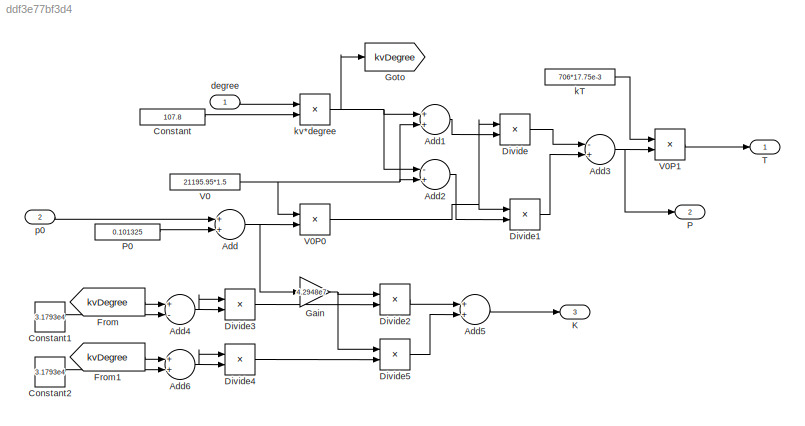
MODEL slx_ddf3e77bf3d4
KIND model
CONFIG AbsTol = auto
CONFIG EnableMultiTasking = off
CONFIG FixedStep = auto
CONFIG MaxStep = auto
CONFIG MinStep = auto
CONFIG RelTol = 1e-3
CONFIG SampleTimeConstraint = Unconstrained
CONFIG Solver = VariableStepAuto
CONFIG SolverName = VariableStepAuto
CONFIG StartTime = 0.0
CONFIG StopTime = 10.0
BLOCK [Sum] Add
  InputSameDT = off
  OutDataTypeStr = Inherit: Inherit via internal rule
  Ports = [2, 1]
  SaturateOnIntegerOverflow = off
BLOCK [Sum] Add1
  InputSameDT = off
  OutDataTypeStr = Inherit: Inherit via internal rule
  Ports = [2, 1]
  SaturateOnIntegerOverflow = off
BLOCK [Sum] Add2
  InputSameDT = off
  Inputs = -+
  OutDataTypeStr = Inherit: Inherit via internal rule
  Ports = [2, 1]
  SaturateOnIntegerOverflow = off
BLOCK [Sum] Add3
  InputSameDT = off
  Inputs = -+
  OutDataTypeStr = Inherit: Inherit via internal rule
  Ports = [2, 1]
  SaturateOnIntegerOverflow = off
BLOCK [Sum] Add4
  InputSameDT = off
  Inputs = +-
  OutDataTypeStr = Inherit: Inherit via internal rule
  Ports = [2, 1]
  SaturateOnIntegerOverflow = off
BLOCK [Sum] Add5
  InputSameDT = off
  OutDataTypeStr = Inherit: Inherit via internal rule
  Ports = [2, 1]
  SaturateOnIntegerOverflow = off
BLOCK [Sum] Add6
  InputSameDT = off
  OutDataTypeStr = Inherit: Inherit via internal rule
  Ports = [2, 1]
  SaturateOnIntegerOverflow = off
BLOCK [Constant] Constant
  Value = 107.8
BLOCK [Constant] Constant1
  Value = 3.1793e4
BLOCK [Constant] Constant2
  Value = 3.1793e4
BLOCK [Product] Divide
  InputSameDT = off
  Inputs = */
  OutDataTypeStr = Inherit: Inherit via internal rule
  Ports = [2, 1]
  RndMeth = Floor
  SaturateOnIntegerOverflow = off
BLOCK [Product] Divide1
  InputSameDT = off
  Inputs = */
  OutDataTypeStr = Inherit: Inherit via internal rule
  Ports = [2, 1]
  RndMeth = Floor
  SaturateOnIntegerOverflow = off
BLOCK [Product] Divide2
  InputSameDT = off
  Inputs = */
  OutDataTypeStr = Inherit: Inherit via internal rule
  Ports = [2, 1]
  RndMeth = Floor
  SaturateOnIntegerOverflow = off
BLOCK [Product] Divide3
  InputSameDT = off
  Inputs = **
  OutDataTypeStr = Inherit: Inherit via internal rule
  Ports = [2, 1]
  RndMeth = Floor
  SaturateOnIntegerOverflow = off
BLOCK [Product] Divide4
  InputSameDT = off
  Inputs = **
  OutDataTypeStr = Inherit: Inherit via internal rule
  Ports = [2, 1]
  RndMeth = Floor
  SaturateOnIntegerOverflow = off
BLOCK [Product] Divide5
  InputSameDT = off
  Inputs = */
  OutDataTypeStr = Inherit: Inherit via internal rule
  Ports = [2, 1]
  RndMeth = Floor
  SaturateOnIntegerOverflow = off
BLOCK [From] From
  GotoTag = kvDegree
BLOCK [From] From1
  GotoTag = kvDegree
BLOCK [Gain] Gain
  Gain = 4.2948e7
  OutDataTypeStr = Inherit: Inherit via internal rule
  ParamDataTypeStr = Inherit: Inherit via internal rule
  SaturateOnIntegerOverflow = off
BLOCK [Goto] Goto
  GotoTag = kvDegree
BLOCK [Outport] K
  IconDisplay = Port number
  Port = 3
BLOCK [Outport] P
  IconDisplay = Port number
  Port = 2
BLOCK [Constant] P0
  Value = 0.101325
BLOCK [Outport] T
  IconDisplay = Port number
BLOCK [Constant] V0
  Value = 21195.95*1.5
BLOCK [Product] V0P0
  InputSameDT = off
  OutDataTypeStr = Inherit: Inherit via internal rule
  Ports = [2, 1]
  RndMeth = Floor
  SaturateOnIntegerOverflow = off
BLOCK [Product] V0P1
  InputSameDT = off
  OutDataTypeStr = Inherit: Inherit via internal rule
  Ports = [2, 1]
  RndMeth = Floor
  SaturateOnIntegerOverflow = off
BLOCK [Inport] degree
  IconDisplay = Port number
BLOCK [Constant] kT
  Value = 706*17.75e-3
BLOCK [Product] kv*degree
  InputSameDT = off
  OutDataTypeStr = Inherit: Inherit via internal rule
  Ports = [2, 1]
  RndMeth = Floor
  SaturateOnIntegerOverflow = off
BLOCK [Inport] p0
  IconDisplay = Port number
  Port = 2
LINE Add1:1 -> Divide:2
LINE Add2:1 -> Divide1:2
NET Add3:1 -> P:1, V0P1:2
NET Add4:1 -> Divide3:1, Divide3:2
LINE Add5:1 -> K:1
NET Add6:1 -> Divide4:1, Divide4:2
NET Add:1 -> Gain:1, V0P0:2
LINE Constant1:1 -> Add4:2
LINE Constant2:1 -> Add6:2
LINE Constant:1 -> kv*degree:2
LINE Divide1:1 -> Add3:2
LINE Divide2:1 -> Add5:1
LINE Divide3:1 -> Divide2:2
LINE Divide4:1 -> Divide5:2
LINE Divide5:1 -> Add5:2
LINE Divide:1 -> Add3:1
LINE From1:1 -> Add6:1
LINE From:1 -> Add4:1
NET Gain:1 -> Divide2:1, Divide5:1
LINE P0:1 -> Add:2
NET V0:1 -> Add1:2, Add2:2, V0P0:1
NET V0P0:1 -> Divide1:1, Divide:1
LINE V0P1:1 -> T:1
LINE degree:1 -> kv*degree:1
LINE kT:1 -> V0P1:1
NET kv*degree:1 -> Add1:1, Add2:1, Goto:1
LINE p0:1 -> Add:1
note: NET lines group one-source signal fan-out (src -> all destinations, sorted); 1:1 wires keep LINE
